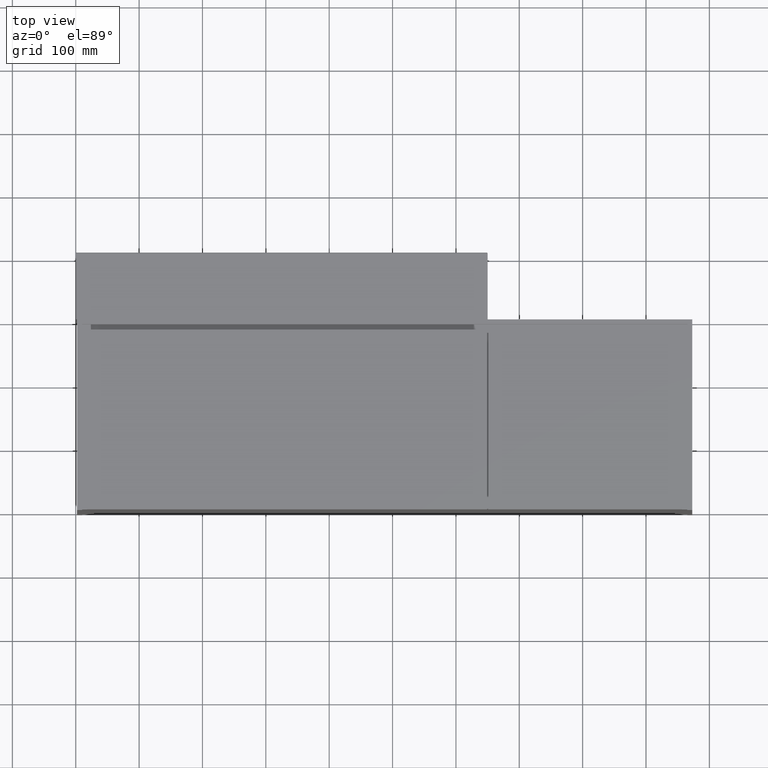
[diagram: clean part render]
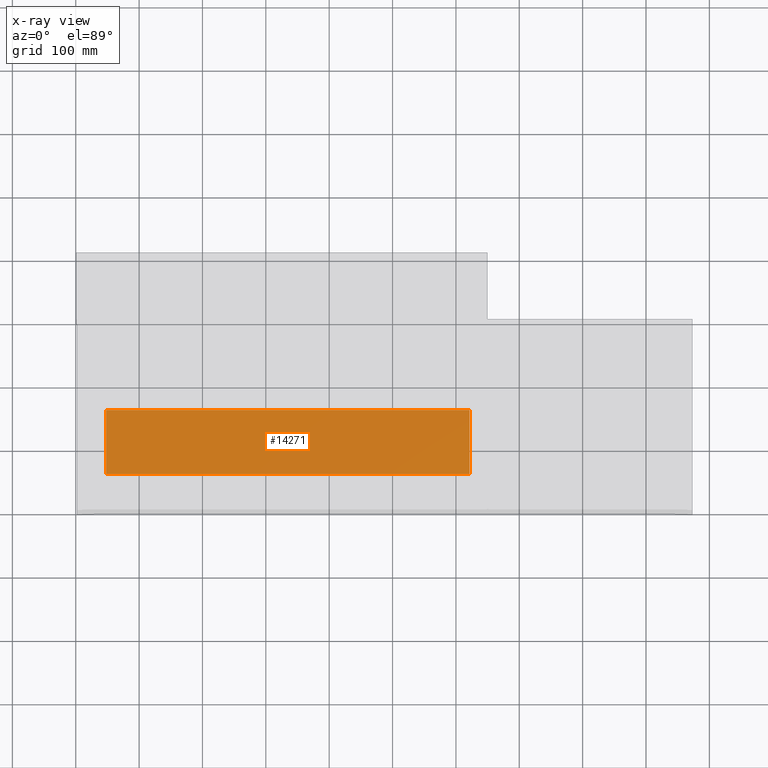
[diagram: x-ray — body ghosted, one internal face saturated and labeled with its STEP entity id]
A machine part, top view, then the same camera in x-ray: the body is ghosted and one INTERNAL B-rep face — a face not visible from any outside direction — is saturated and labeled: STEP entity #14271.
In plain terms, the highlighted planar face has unit normal (0, 0, -1).
Its self-contained STEP definition (entity closure, byte-faithful):
#187 = VERTEX_POINT ( 'NONE', #1977 ) ;
#702 = CARTESIAN_POINT ( 'NONE',  ( 621.5000000000003411, 162.4999999999999147, -338.0000000000000000 ) ) ;
#724 = AXIS2_PLACEMENT_3D ( 'NONE', #3768, #8634, #13509 ) ;
#1456 = VECTOR ( 'NONE', #12413, 1000.000000000000000 ) ;
#1481 = EDGE_CURVE ( 'NONE', #3685, #187, #8823, .T. ) ;
#1977 = CARTESIAN_POINT ( 'NONE',  ( 621.5000000000003411, 61.49999999999992895, -338.0000000000000000 ) ) ;
#2739 = VECTOR ( 'NONE', #4407, 1000.000000000000000 ) ;
#2756 = DIRECTION ( 'NONE',  ( 1.000000000000000000, -1.209920471474668582E-16, 0.0000000000000000000 ) ) ;
#2766 = VERTEX_POINT ( 'NONE', #9210 ) ;
#2843 = EDGE_CURVE ( 'NONE', #2766, #11424, #5851, .T. ) ;
#3582 = ORIENTED_EDGE ( 'NONE', *, *, #1481, .T. ) ;
#3685 = VERTEX_POINT ( 'NONE', #12694 ) ;
#3768 = CARTESIAN_POINT ( 'NONE',  ( 48.00000000000009948, 162.5000000000000000, -338.0000000000000000 ) ) ;
#4407 = DIRECTION ( 'NONE',  ( -1.203624267806977720E-16, -1.000000000000000000, -0.0000000000000000000 ) ) ;
#5456 = CARTESIAN_POINT ( 'NONE',  ( 621.5000000000003411, 162.4999999999999147, -338.0000000000000000 ) ) ;
#5583 = DIRECTION ( 'NONE',  ( -1.203624267806977720E-16, -1.000000000000000000, -0.0000000000000000000 ) ) ;
#5851 = LINE ( 'NONE', #7536, #1456 ) ;
#7230 = EDGE_CURVE ( 'NONE', #11424, #187, #11649, .T. ) ;
#7320 = VECTOR ( 'NONE', #5583, 1000.000000000000000 ) ;
#7536 = CARTESIAN_POINT ( 'NONE',  ( 48.00000000000009948, 162.5000000000000000, -338.0000000000000000 ) ) ;
#8634 = DIRECTION ( 'NONE',  ( 0.0000000000000000000, 0.0000000000000000000, -1.000000000000000000 ) ) ;
#8823 = LINE ( 'NONE', #13696, #10257 ) ;
#9210 = CARTESIAN_POINT ( 'NONE',  ( 48.00000000000009948, 162.5000000000000000, -338.0000000000000000 ) ) ;
#9838 = FACE_OUTER_BOUND ( 'NONE', #13601, .T. ) ;
#10257 = VECTOR ( 'NONE', #2756, 1000.000000000000000 ) ;
#10486 = LINE ( 'NONE', #15339, #2739 ) ;
#11424 = VERTEX_POINT ( 'NONE', #5456 ) ;
#11649 = LINE ( 'NONE', #702, #7320 ) ;
#12243 = ORIENTED_EDGE ( 'NONE', *, *, #12539, .T. ) ;
#12413 = DIRECTION ( 'NONE',  ( 1.000000000000000000, -1.209920471474668582E-16, 0.0000000000000000000 ) ) ;
#12539 = EDGE_CURVE ( 'NONE', #2766, #3685, #10486, .T. ) ;
#12694 = CARTESIAN_POINT ( 'NONE',  ( 48.00000000000004263, 61.50000000000000000, -338.0000000000000000 ) ) ;
#13509 = DIRECTION ( 'NONE',  ( -1.000000000000000000, 0.0000000000000000000, -0.0000000000000000000 ) ) ;
#13601 = EDGE_LOOP ( 'NONE', ( #3582, #14080, #14007, #12243 ) ) ;
#13696 = CARTESIAN_POINT ( 'NONE',  ( 48.00000000000004263, 61.50000000000000000, -338.0000000000000000 ) ) ;
#14007 = ORIENTED_EDGE ( 'NONE', *, *, #2843, .F. ) ;
#14080 = ORIENTED_EDGE ( 'NONE', *, *, #7230, .F. ) ;
#14271 = ADVANCED_FACE ( 'NONE', ( #9838 ), #14696, .F. ) ;
#14696 = PLANE ( 'NONE',  #724 ) ;
#15339 = CARTESIAN_POINT ( 'NONE',  ( 48.00000000000009948, 162.5000000000000000, -338.0000000000000000 ) ) ;